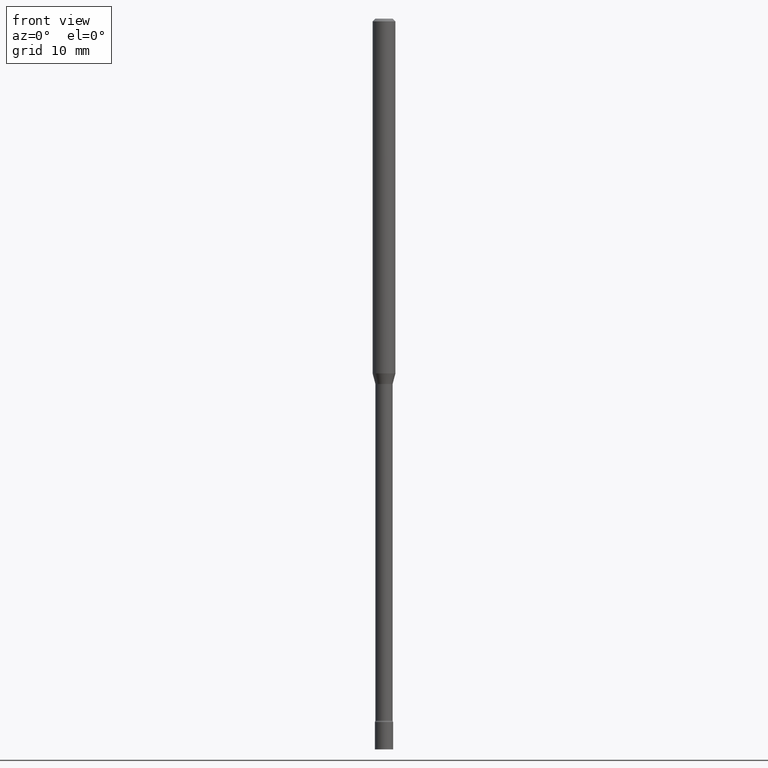
[diagram: clean part render]
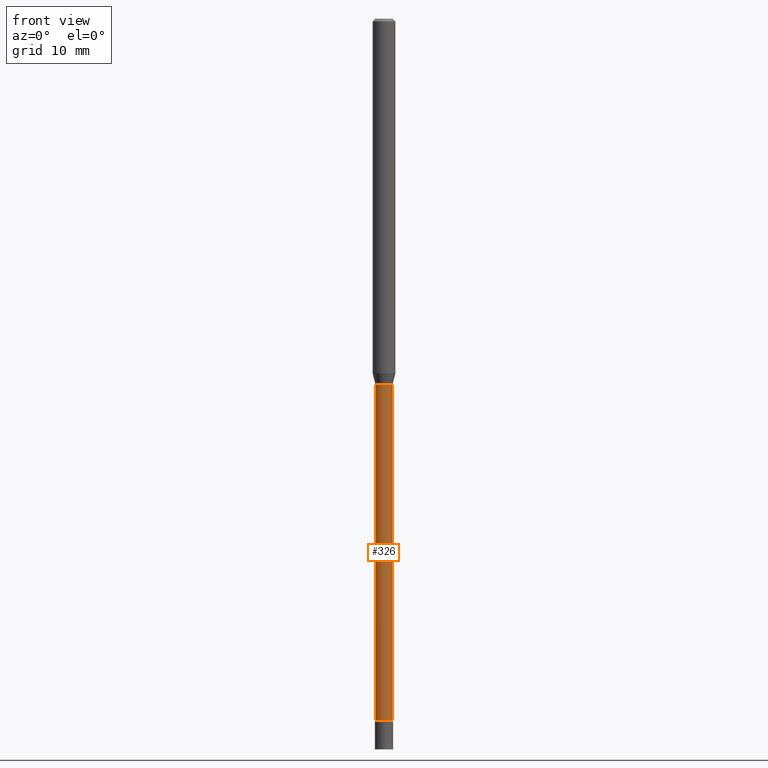
[diagram: same view with one face highlighted and labeled with its STEP entity id]
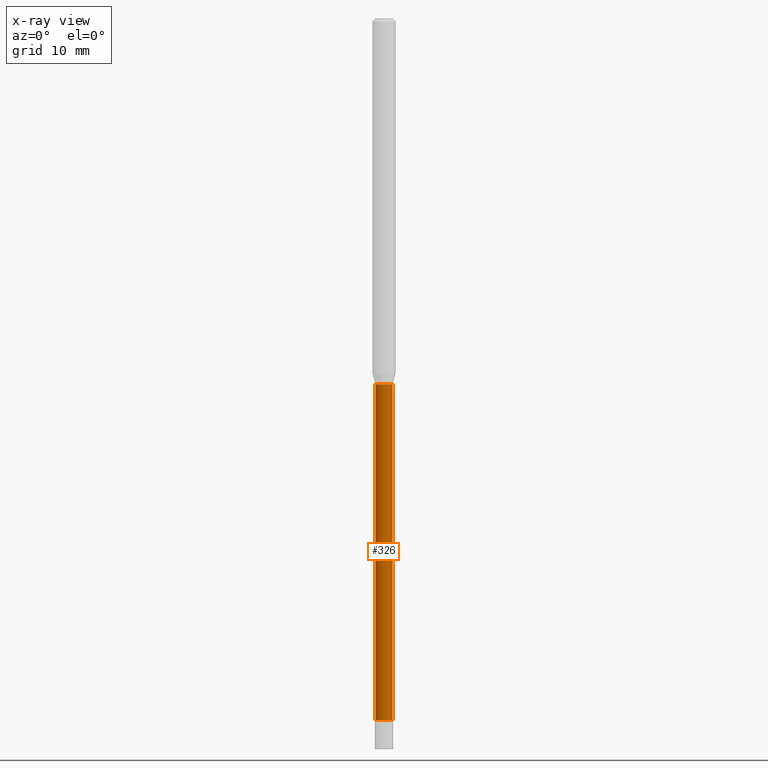
[diagram: x-ray of the same camera — body ghosted, the highlighted face saturated]
A machine part, front view. The second image highlights one B-rep face of the part: STEP entity #326.
The next image is the same camera in x-ray: the body ghosted, the highlighted face saturated — about 0% of this face is hidden behind the body in this view.
In plain terms, the highlighted cylindrical surface (edge-blend (fillet) strip) has radius 1.1938 mm, axis along (-0, 0, 1).
Its self-contained STEP definition (entity closure, byte-faithful):
#2 = CYLINDRICAL_SURFACE ( 'NONE', #110, 0.04700000000000017358 ) ;
#11 = CARTESIAN_POINT ( 'NONE',  ( -0.04700000000000035399, -1.308187826167766793E-14, -3.841000000000001080 ) ) ;
#20 = DIRECTION ( 'NONE',  ( -2.445468806185136877E-29, 3.491481338843145188E-15, 1.000000000000000000 ) ) ;
#25 = VECTOR ( 'NONE', #20, 39.37007874015748143 ) ;
#35 = FACE_OUTER_BOUND ( 'NONE', #494, .T. ) ;
#45 = DIRECTION ( 'NONE',  ( 1.000000000000000000, -6.982962677686269866E-15, 0.000000000000000000 ) ) ;
#54 = DIRECTION ( 'NONE',  ( -2.445468806185136877E-29, 3.491481338843145188E-15, 1.000000000000000000 ) ) ;
#67 = DIRECTION ( 'NONE',  ( 1.000000000000000000, -6.982962677686267499E-15, 4.876176775795935793E-29 ) ) ;
#80 = CIRCLE ( 'NONE', #128, 0.04700000000000035399 ) ;
#86 = EDGE_CURVE ( 'NONE', #392, #263, #251, .T. ) ;
#110 = AXIS2_PLACEMENT_3D ( 'NONE', #269, #322, #67 ) ;
#114 = CARTESIAN_POINT ( 'NONE',  ( 0.04700000000000035399, -1.373897906834778213E-14, -3.841000000000001080 ) ) ;
#128 = AXIS2_PLACEMENT_3D ( 'NONE', #177, #198, #469 ) ;
#148 = EDGE_CURVE ( 'NONE', #392, #327, #80, .T. ) ;
#165 = EDGE_CURVE ( 'NONE', #327, #346, #374, .T. ) ;
#177 = CARTESIAN_POINT ( 'NONE',  ( 9.393045684557111749E-29, -1.341077982249652526E-14, -3.841000000000001080 ) ) ;
#198 = DIRECTION ( 'NONE',  ( -2.445468806185136597E-29, 3.491481338843145583E-15, 1.000000000000000000 ) ) ;
#210 = CARTESIAN_POINT ( 'NONE',  ( -0.04700000000000017358, 3.339550858072483207E-16, -2.311899492419814478E-30 ) ) ;
#251 = LINE ( 'NONE', #210, #25 ) ;
#263 = VERTEX_POINT ( 'NONE', #486 ) ;
#269 = CARTESIAN_POINT ( 'NONE',  ( 0.000000000000000000, 0.000000000000000000, 0.000000000000000000 ) ) ;
#270 = ORIENTED_EDGE ( 'NONE', *, *, #148, .T. ) ;
#295 = DIRECTION ( 'NONE',  ( -2.445468806185136597E-29, 3.491481338843145583E-15, 1.000000000000000000 ) ) ;
#322 = DIRECTION ( 'NONE',  ( -2.445468806185136597E-29, 3.491481338843145583E-15, 1.000000000000000000 ) ) ;
#326 = ADVANCED_FACE ( 'NONE', ( #35 ), #2, .T. ) ;
#327 = VERTEX_POINT ( 'NONE', #114 ) ;
#335 = CARTESIAN_POINT ( 'NONE',  ( 4.895766893511867445E-29, -6.989857611264368100E-15, -2.001974787463810745 ) ) ;
#346 = VERTEX_POINT ( 'NONE', #355 ) ;
#355 = CARTESIAN_POINT ( 'NONE',  ( 0.04700000000000000705, -7.318056857115623393E-15, -2.001974787463810745 ) ) ;
#374 = LINE ( 'NONE', #453, #484 ) ;
#389 = ORIENTED_EDGE ( 'NONE', *, *, #460, .F. ) ;
#392 = VERTEX_POINT ( 'NONE', #11 ) ;
#417 = ORIENTED_EDGE ( 'NONE', *, *, #86, .F. ) ;
#422 = AXIS2_PLACEMENT_3D ( 'NONE', #335, #295, #45 ) ;
#451 = ORIENTED_EDGE ( 'NONE', *, *, #165, .T. ) ;
#453 = CARTESIAN_POINT ( 'NONE',  ( 0.04700000000000017358, -3.281992458512557857E-16, 2.291803084624098286E-30 ) ) ;
#460 = EDGE_CURVE ( 'NONE', #263, #346, #467, .T. ) ;
#467 = CIRCLE ( 'NONE', #422, 0.04700000000000000705 ) ;
#469 = DIRECTION ( 'NONE',  ( 1.000000000000000000, -6.982962677686259611E-15, 0.000000000000000000 ) ) ;
#484 = VECTOR ( 'NONE', #54, 39.37007874015748143 ) ;
#486 = CARTESIAN_POINT ( 'NONE',  ( -0.04700000000000000705, -9.866363631073192987E-15, -2.001974787463810745 ) ) ;
#494 = EDGE_LOOP ( 'NONE', ( #417, #270, #451, #389 ) ) ;